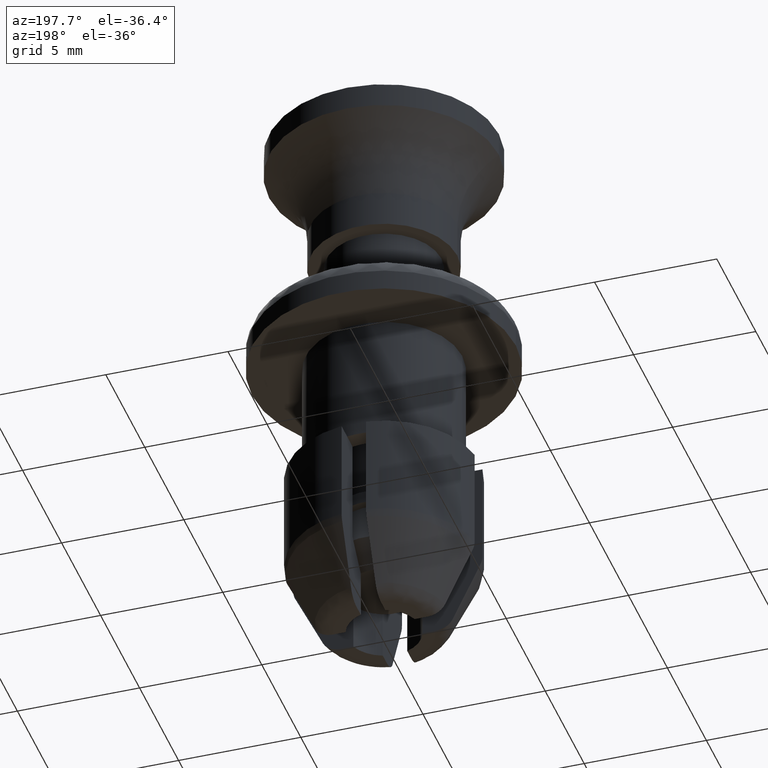
[diagram: clean part render]
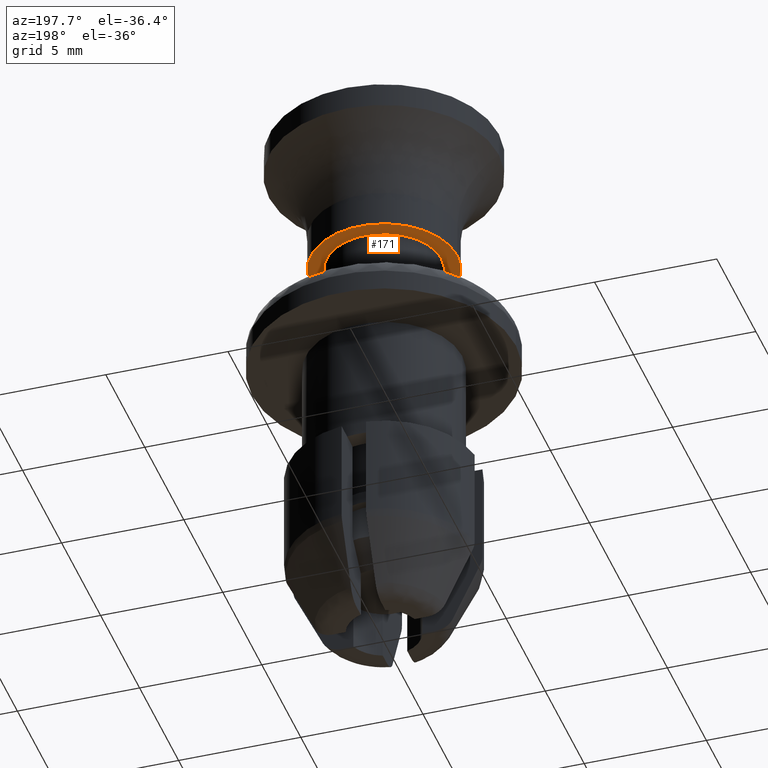
[diagram: same view with one face highlighted and labeled with its STEP entity id]
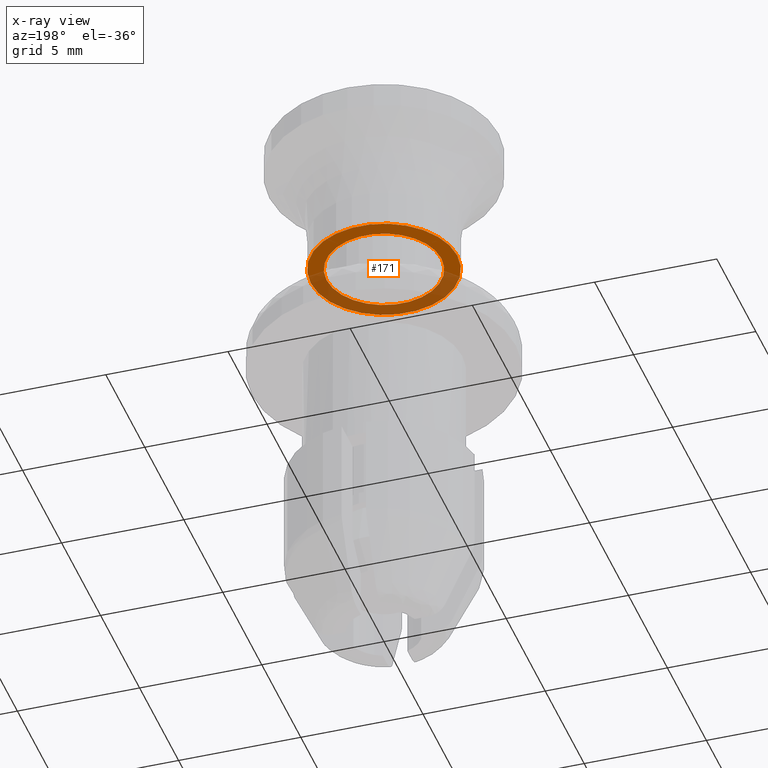
[diagram: x-ray of the same camera — body ghosted, the highlighted face saturated]
A machine part, auxiliary view. The second image highlights one B-rep face of the part: STEP entity #171.
The next image is the same camera in x-ray: the body ghosted, the highlighted face saturated — about 46% of this face is hidden behind the body in this view.
In plain terms, the highlighted planar face has unit normal (0, 0, -1).
Its self-contained STEP definition (entity closure, byte-faithful):
#171=ADVANCED_FACE('',(#787,#788),#786,.T.);
#786=PLANE('',#1433);
#787=FACE_OUTER_BOUND('',#1434,.T.);
#788=FACE_BOUND('',#1435,.T.);
#1430=CARTESIAN_POINT('',(6.90000000000E+00,-6.23538290725E+00,0.00000000000E+00));
#1431=DIRECTION('',(0.00000000000E+00,0.00000000000E+00,-1.00000000000E+00));
#1432=DIRECTION('',(-1.00000000000E+00,0.00000000000E+00,0.00000000000E+00));
#1433=AXIS2_PLACEMENT_3D('',#1430,#1431,#1432);
#1434=EDGE_LOOP('',(#1924,#1925));
#1435=EDGE_LOOP('',(#1926,#1927));
#1924=ORIENTED_EDGE('',*,*,#2166,.T.);
#1925=ORIENTED_EDGE('',*,*,#2167,.T.);
#1926=ORIENTED_EDGE('',*,*,#2168,.F.);
#1927=ORIENTED_EDGE('',*,*,#2169,.F.);
#2166=EDGE_CURVE('',#3268,#3269,#3270,.T.);
#2167=EDGE_CURVE('',#3269,#3268,#3276,.T.);
#2168=EDGE_CURVE('',#3282,#3283,#3284,.T.);
#2169=EDGE_CURVE('',#3283,#3282,#3290,.T.);
#3268=VERTEX_POINT('',#4215);
#3269=VERTEX_POINT('',#4216);
#3270=CIRCLE('',#4220,3.00000000000E+00);
#3276=CIRCLE('',#4224,3.00000000000E+00);
#3282=VERTEX_POINT('',#4225);
#3283=VERTEX_POINT('',#4226);
#3284=CIRCLE('',#4230,2.35000000000E+00);
#3290=CIRCLE('',#4234,2.35000000000E+00);
#4215=CARTESIAN_POINT('',(-3.00000000000E+00,0.00000000000E+00,0.00000000000E+00));
#4216=CARTESIAN_POINT('',(3.00000000000E+00,-1.48029736617E-16,0.00000000000E+00));
#4217=CARTESIAN_POINT('',(0.00000000000E+00,0.00000000000E+00,0.00000000000E+00));
#4218=DIRECTION('',(-0.00000000000E+00,0.00000000000E+00,-1.00000000000E+00));
#4219=DIRECTION('',(-1.00000000000E+00,-1.22460635382E-16,0.00000000000E+00));
#4220=AXIS2_PLACEMENT_3D('',#4217,#4218,#4219);
#4221=CARTESIAN_POINT('',(0.00000000000E+00,0.00000000000E+00,0.00000000000E+00));
#4222=DIRECTION('',(-0.00000000000E+00,0.00000000000E+00,-1.00000000000E+00));
#4223=DIRECTION('',(-1.00000000000E+00,-1.22460635382E-16,0.00000000000E+00));
#4224=AXIS2_PLACEMENT_3D('',#4221,#4222,#4223);
#4225=CARTESIAN_POINT('',(2.35000000000E+00,0.00000000000E+00,0.00000000000E+00));
#4226=CARTESIAN_POINT('',(-2.35000000000E+00,0.00000000000E+00,0.00000000000E+00));
#4227=CARTESIAN_POINT('',(0.00000000000E+00,0.00000000000E+00,0.00000000000E+00));
#4228=DIRECTION('',(-0.00000000000E+00,0.00000000000E+00,-1.00000000000E+00));
#4229=DIRECTION('',(-1.00000000000E+00,-1.22460635382E-16,0.00000000000E+00));
#4230=AXIS2_PLACEMENT_3D('',#4227,#4228,#4229);
#4231=CARTESIAN_POINT('',(0.00000000000E+00,0.00000000000E+00,0.00000000000E+00));
#4232=DIRECTION('',(-0.00000000000E+00,0.00000000000E+00,-1.00000000000E+00));
#4233=DIRECTION('',(-1.00000000000E+00,-1.22460635382E-16,0.00000000000E+00));
#4234=AXIS2_PLACEMENT_3D('',#4231,#4232,#4233);